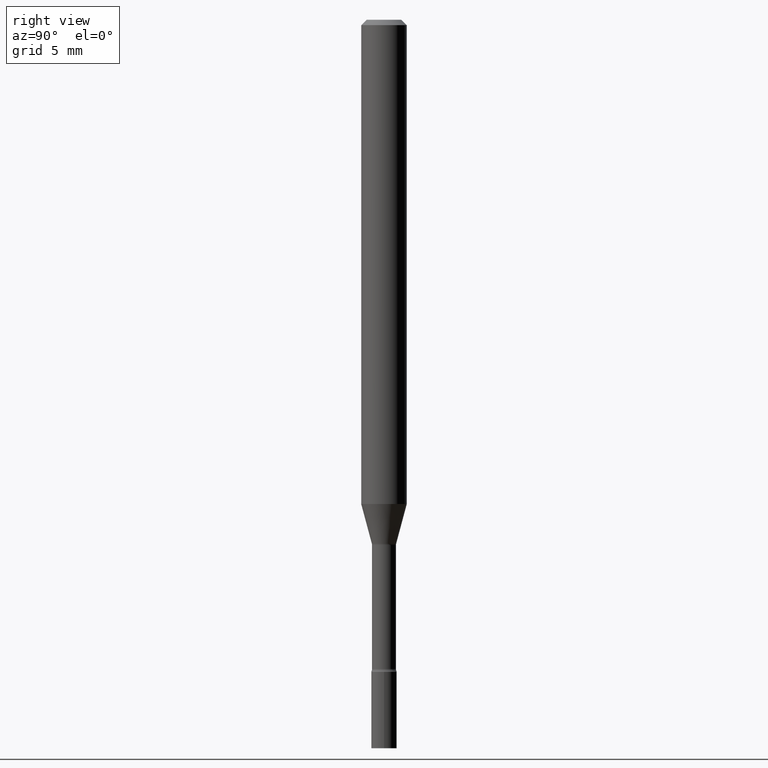
[diagram: clean part render]
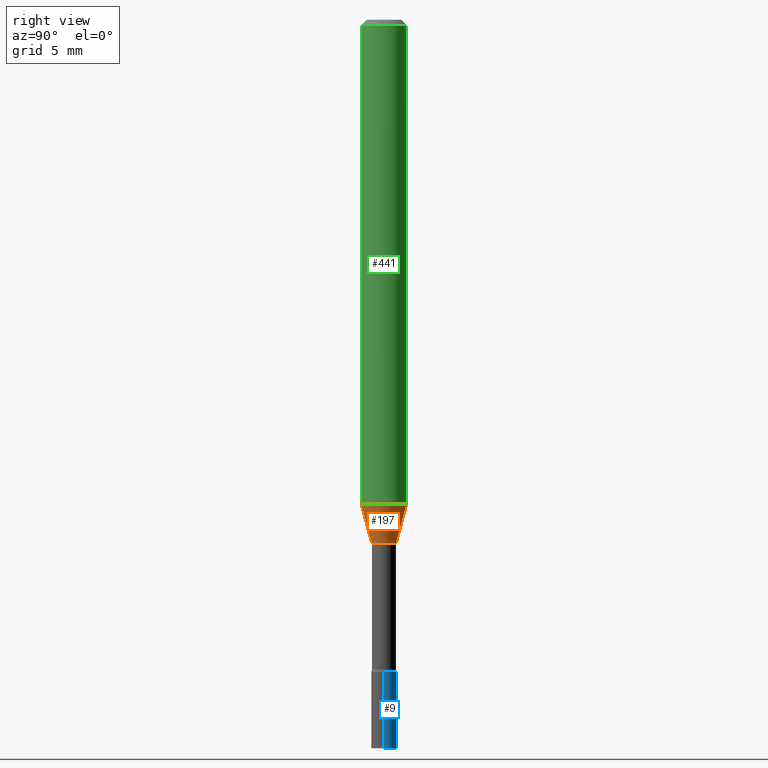
[diagram: same view with three faces highlighted in distinct colors, each labeled with its STEP entity id]
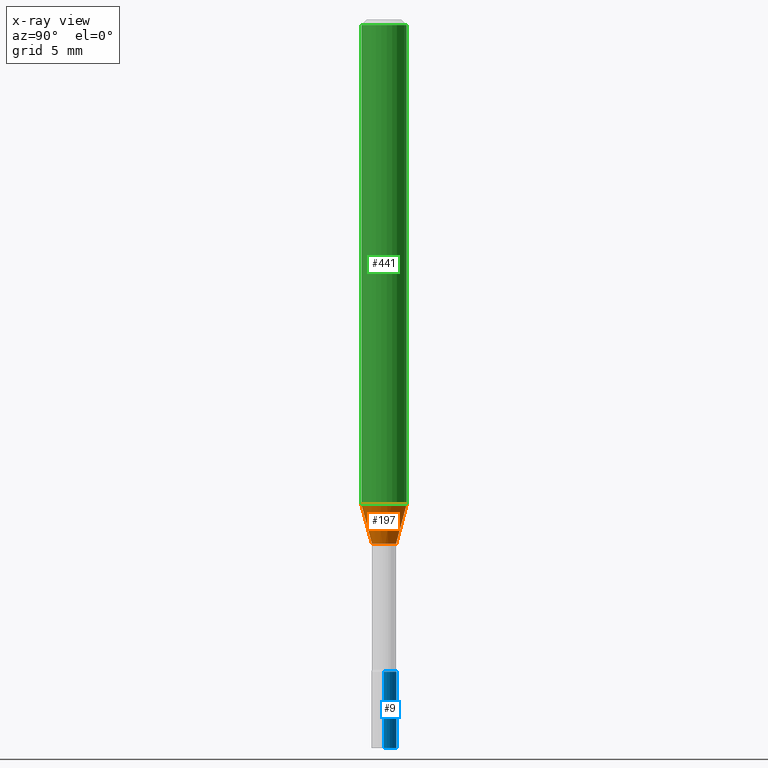
[diagram: x-ray of the same camera — body ghosted, the three highlighted faces saturated]
A machine part, right view with three faces highlighted in distinct colors.
The next image is the same camera in x-ray (body ghosted, the three faces saturated) — at least one of them is partly hidden behind the body in this view.
Their STEP definitions:

[orange] entity #197 — the highlighted conical surface has half-angle 15 deg.
#22 = FACE_OUTER_BOUND ( 'NONE', #391, .T. ) ;
#53 = CARTESIAN_POINT ( 'NONE',  ( 3.407447217031514627E-16, 0.03341111260565895330, -1.438092501787272992 ) ) ;
#57 = ORIENTED_EDGE ( 'NONE', *, *, #430, .F. ) ;
#70 = AXIS2_PLACEMENT_3D ( 'NONE', #297, #460, #448 ) ;
#80 = EDGE_CURVE ( 'NONE', #514, #512, #206, .T. ) ;
#86 = LINE ( 'NONE', #116, #476 ) ;
#116 = CARTESIAN_POINT ( 'NONE',  ( -2.333085523452895390E-16, -0.03341111260566900082, -1.438092501787272992 ) ) ;
#122 = VECTOR ( 'NONE', #205, 39.37007874015748143 ) ;
#130 = CIRCLE ( 'NONE', #70, 0.03341111260566397706 ) ;
#139 = DIRECTION ( 'NONE',  ( -2.445489672359268108E-29, 3.491451457294160255E-15, 1.000000000000000000 ) ) ;
#142 = ORIENTED_EDGE ( 'NONE', *, *, #315, .T. ) ;
#186 = VERTEX_POINT ( 'NONE', #53 ) ;
#197 = ADVANCED_FACE ( 'NONE', ( #22 ), #403, .T. ) ;
#205 = DIRECTION ( 'NONE',  ( 1.839019923739599526E-15, 0.2588190451025248473, 0.9659258262890670910 ) ) ;
#206 = CIRCLE ( 'NONE', #496, 0.06250000000000000000 ) ;
#220 = ORIENTED_EDGE ( 'NONE', *, *, #350, .T. ) ;
#233 = CARTESIAN_POINT ( 'NONE',  ( -4.364351673553592768E-16, -0.06250000000000467681, -1.329531296095961101 ) ) ;
#241 = DIRECTION ( 'NONE',  ( -6.982962677686266711E-15, -1.000000000000000000, 0.000000000000000000 ) ) ;
#297 = CARTESIAN_POINT ( 'NONE',  ( 3.516840361018078842E-29, -5.021030161088979322E-15, -1.438092501787272992 ) ) ;
#302 = CARTESIAN_POINT ( 'NONE',  ( -2.333085523452895390E-16, -0.03341111260566900082, -1.438092501787272992 ) ) ;
#315 = EDGE_CURVE ( 'NONE', #385, #186, #130, .T. ) ;
#337 = ORIENTED_EDGE ( 'NONE', *, *, #80, .F. ) ;
#338 = CARTESIAN_POINT ( 'NONE',  ( 3.516840361018078842E-29, -5.021030161088979322E-15, -1.438092501787272992 ) ) ;
#350 = EDGE_CURVE ( 'NONE', #186, #512, #416, .T. ) ;
#377 = CARTESIAN_POINT ( 'NONE',  ( 2.374002335562076701E-16, 0.03341111260565896024, -1.438092501787272992 ) ) ;
#385 = VERTEX_POINT ( 'NONE', #302 ) ;
#391 = EDGE_LOOP ( 'NONE', ( #142, #220, #337, #57 ) ) ;
#395 = DIRECTION ( 'NONE',  ( -1.807323732225329350E-15, -0.2588190451025180194, 0.9659258262890689783 ) ) ;
#403 = CONICAL_SURFACE ( 'NONE', #475, 0.03341111260566397706, 0.2617993877991501850 ) ;
#416 = LINE ( 'NONE', #377, #122 ) ;
#430 = EDGE_CURVE ( 'NONE', #385, #514, #86, .T. ) ;
#436 = CARTESIAN_POINT ( 'NONE',  ( 3.251355053681105951E-29, -4.641993981272437762E-15, -1.329531296095961546 ) ) ;
#443 = DIRECTION ( 'NONE',  ( -6.982962677686265922E-15, -1.000000000000000000, 4.370956789862821150E-15 ) ) ;
#448 = DIRECTION ( 'NONE',  ( -6.982962677686266711E-15, -1.000000000000000000, 0.000000000000000000 ) ) ;
#460 = DIRECTION ( 'NONE',  ( -2.445489672359268108E-29, 3.491451457294160255E-15, 1.000000000000000000 ) ) ;
#475 = AXIS2_PLACEMENT_3D ( 'NONE', #338, #139, #241 ) ;
#476 = VECTOR ( 'NONE', #395, 39.37007874015749564 ) ;
#487 = DIRECTION ( 'NONE',  ( -2.445489672359268108E-29, 3.491451457294160255E-15, 1.000000000000000000 ) ) ;
#496 = AXIS2_PLACEMENT_3D ( 'NONE', #436, #487, #443 ) ;
#512 = VERTEX_POINT ( 'NONE', #515 ) ;
#514 = VERTEX_POINT ( 'NONE', #233 ) ;
#515 = CARTESIAN_POINT ( 'NONE',  ( 4.440892098500948609E-16, 0.06249999999999532319, -1.329531296095961768 ) ) ;

[blue] entity #9 — the highlighted cylindrical surface (edge-blend (fillet) strip) has radius 0.889 mm, axis along (-0, 0, 1).
#9 = ADVANCED_FACE ( 'NONE', ( #60 ), #498, .T. ) ;
#16 = DIRECTION ( 'NONE',  ( 1.000000000000000000, -6.982962677686265922E-15, 4.876176775795936353E-29 ) ) ;
#32 = DIRECTION ( 'NONE',  ( -2.445468806185136877E-29, 3.491481338843145188E-15, 1.000000000000000000 ) ) ;
#44 = EDGE_CURVE ( 'NONE', #370, #413, #479, .T. ) ;
#50 = DIRECTION ( 'NONE',  ( 1.000000000000000000, -6.982962677686276966E-15, 0.000000000000000000 ) ) ;
#55 = CARTESIAN_POINT ( 'NONE',  ( 4.890937612370273194E-29, -6.982962677686291165E-15, -2.000000000000000000 ) ) ;
#56 = CARTESIAN_POINT ( 'NONE',  ( 0.000000000000000000, 0.000000000000000000, 0.000000000000000000 ) ) ;
#60 = FACE_OUTER_BOUND ( 'NONE', #170, .T. ) ;
#62 = VERTEX_POINT ( 'NONE', #405 ) ;
#64 = EDGE_CURVE ( 'NONE', #413, #62, #158, .T. ) ;
#71 = LINE ( 'NONE', #435, #263 ) ;
#92 = AXIS2_PLACEMENT_3D ( 'NONE', #55, #181, #348 ) ;
#124 = CARTESIAN_POINT ( 'NONE',  ( 0.03500000000000000333, -2.444036937190193250E-16, 1.706661871528577808E-30 ) ) ;
#158 = CIRCLE ( 'NONE', #432, 0.03500000000000000333 ) ;
#170 = EDGE_LOOP ( 'NONE', ( #281, #355, #500, #358 ) ) ;
#181 = DIRECTION ( 'NONE',  ( -2.445468806185136597E-29, 3.491481338843145583E-15, 1.000000000000000000 ) ) ;
#182 = CARTESIAN_POINT ( 'NONE',  ( 0.03500000000000000333, -6.494155290248250444E-15, -1.790000000000000036 ) ) ;
#200 = CARTESIAN_POINT ( 'NONE',  ( 4.377389163071394665E-29, -6.249751596529231267E-15, -1.790000000000000036 ) ) ;
#211 = CARTESIAN_POINT ( 'NONE',  ( 0.03500000000000000333, -7.227366371405310342E-15, -2.000000000000000000 ) ) ;
#263 = VECTOR ( 'NONE', #32, 39.37007874015748143 ) ;
#276 = AXIS2_PLACEMENT_3D ( 'NONE', #56, #374, #16 ) ;
#281 = ORIENTED_EDGE ( 'NONE', *, *, #330, .T. ) ;
#295 = CIRCLE ( 'NONE', #92, 0.03500000000000000333 ) ;
#324 = DIRECTION ( 'NONE',  ( -2.445468806185136597E-29, 3.491481338843145583E-15, 1.000000000000000000 ) ) ;
#330 = EDGE_CURVE ( 'NONE', #370, #450, #295, .T. ) ;
#348 = DIRECTION ( 'NONE',  ( 1.000000000000000000, -6.982962677686276966E-15, 0.000000000000000000 ) ) ;
#355 = ORIENTED_EDGE ( 'NONE', *, *, #470, .T. ) ;
#358 = ORIENTED_EDGE ( 'NONE', *, *, #44, .F. ) ;
#370 = VERTEX_POINT ( 'NONE', #211 ) ;
#374 = DIRECTION ( 'NONE',  ( -2.445468806185136597E-29, 3.491481338843145583E-15, 1.000000000000000000 ) ) ;
#405 = CARTESIAN_POINT ( 'NONE',  ( -0.03500000000000000333, -6.367667179591725930E-15, -1.790000000000000036 ) ) ;
#413 = VERTEX_POINT ( 'NONE', #182 ) ;
#432 = AXIS2_PLACEMENT_3D ( 'NONE', #200, #324, #50 ) ;
#435 = CARTESIAN_POINT ( 'NONE',  ( -0.03500000000000000333, 2.486899575160350887E-16, -1.721627281589217108E-30 ) ) ;
#438 = DIRECTION ( 'NONE',  ( -2.445468806185136877E-29, 3.491481338843145188E-15, 1.000000000000000000 ) ) ;
#450 = VERTEX_POINT ( 'NONE', #513 ) ;
#470 = EDGE_CURVE ( 'NONE', #450, #62, #71, .T. ) ;
#479 = LINE ( 'NONE', #124, #481 ) ;
#481 = VECTOR ( 'NONE', #438, 39.37007874015748143 ) ;
#498 = CYLINDRICAL_SURFACE ( 'NONE', #276, 0.03500000000000000333 ) ;
#500 = ORIENTED_EDGE ( 'NONE', *, *, #64, .F. ) ;
#513 = CARTESIAN_POINT ( 'NONE',  ( -0.03500000000000000333, -6.367667179591725930E-15, -2.000000000000000000 ) ) ;

[green] entity #441 — the highlighted cylindrical surface (edge-blend (fillet) strip) has radius 1.5875 mm, axis along (-0, 0, 1).
#5 = VECTOR ( 'NONE', #147, 39.37007874015748143 ) ;
#23 = CARTESIAN_POINT ( 'NONE',  ( 4.440892098500625669E-16, 0.06250000000000000000, -2.182157160808850159E-16 ) ) ;
#75 = CARTESIAN_POINT ( 'NONE',  ( 4.440892098500952553E-16, 0.06249999999999993755, -0.01500000000000024751 ) ) ;
#76 = CARTESIAN_POINT ( 'NONE',  ( -4.364351673553916201E-16, -0.06250000000000000000, 2.182157160808850159E-16 ) ) ;
#78 = CARTESIAN_POINT ( 'NONE',  ( -4.364351673553912750E-16, -0.06250000000000005551, -0.01499999999999981209 ) ) ;
#80 = EDGE_CURVE ( 'NONE', #514, #512, #206, .T. ) ;
#96 = VERTEX_POINT ( 'NONE', #75 ) ;
#113 = CYLINDRICAL_SURFACE ( 'NONE', #238, 0.06250000000000000000 ) ;
#136 = EDGE_CURVE ( 'NONE', #407, #96, #215, .T. ) ;
#147 = DIRECTION ( 'NONE',  ( -2.445489672359267828E-29, 3.491451457294160649E-15, 1.000000000000000000 ) ) ;
#167 = DIRECTION ( 'NONE',  ( -2.445489672359267828E-29, 3.491451457294160649E-15, 1.000000000000000000 ) ) ;
#206 = CIRCLE ( 'NONE', #496, 0.06250000000000000000 ) ;
#213 = LINE ( 'NONE', #23, #510 ) ;
#215 = CIRCLE ( 'NONE', #326, 0.06250000000000000000 ) ;
#226 = CARTESIAN_POINT ( 'NONE',  ( 0.000000000000000000, 0.000000000000000000, 0.000000000000000000 ) ) ;
#233 = CARTESIAN_POINT ( 'NONE',  ( -4.364351673553592768E-16, -0.06250000000000467681, -1.329531296095961101 ) ) ;
#238 = AXIS2_PLACEMENT_3D ( 'NONE', #226, #424, #359 ) ;
#256 = DIRECTION ( 'NONE',  ( -2.445489672359268108E-29, 3.491451457294160255E-15, 1.000000000000000000 ) ) ;
#268 = ORIENTED_EDGE ( 'NONE', *, *, #423, .F. ) ;
#288 = EDGE_LOOP ( 'NONE', ( #341, #335, #352, #268 ) ) ;
#326 = AXIS2_PLACEMENT_3D ( 'NONE', #505, #256, #463 ) ;
#335 = ORIENTED_EDGE ( 'NONE', *, *, #360, .T. ) ;
#341 = ORIENTED_EDGE ( 'NONE', *, *, #80, .T. ) ;
#349 = FACE_OUTER_BOUND ( 'NONE', #288, .T. ) ;
#352 = ORIENTED_EDGE ( 'NONE', *, *, #136, .F. ) ;
#359 = DIRECTION ( 'NONE',  ( -6.982962677686265922E-15, -1.000000000000000000, 3.491451457294160255E-15 ) ) ;
#360 = EDGE_CURVE ( 'NONE', #512, #96, #213, .T. ) ;
#407 = VERTEX_POINT ( 'NONE', #78 ) ;
#423 = EDGE_CURVE ( 'NONE', #514, #407, #477, .T. ) ;
#424 = DIRECTION ( 'NONE',  ( -2.445489672359268108E-29, 3.491451457294160255E-15, 1.000000000000000000 ) ) ;
#436 = CARTESIAN_POINT ( 'NONE',  ( 3.251355053681105951E-29, -4.641993981272437762E-15, -1.329531296095961546 ) ) ;
#441 = ADVANCED_FACE ( 'NONE', ( #349 ), #113, .T. ) ;
#443 = DIRECTION ( 'NONE',  ( -6.982962677686265922E-15, -1.000000000000000000, 4.370956789862821150E-15 ) ) ;
#463 = DIRECTION ( 'NONE',  ( -6.982962677686265922E-15, -1.000000000000000000, 3.483106191921935554E-15 ) ) ;
#477 = LINE ( 'NONE', #76, #5 ) ;
#487 = DIRECTION ( 'NONE',  ( -2.445489672359268108E-29, 3.491451457294160255E-15, 1.000000000000000000 ) ) ;
#496 = AXIS2_PLACEMENT_3D ( 'NONE', #436, #487, #443 ) ;
#505 = CARTESIAN_POINT ( 'NONE',  ( 3.668234508538909571E-31, -5.237177185941251155E-17, -0.01500000000000003067 ) ) ;
#510 = VECTOR ( 'NONE', #167, 39.37007874015748143 ) ;
#512 = VERTEX_POINT ( 'NONE', #515 ) ;
#514 = VERTEX_POINT ( 'NONE', #233 ) ;
#515 = CARTESIAN_POINT ( 'NONE',  ( 4.440892098500948609E-16, 0.06249999999999532319, -1.329531296095961768 ) ) ;